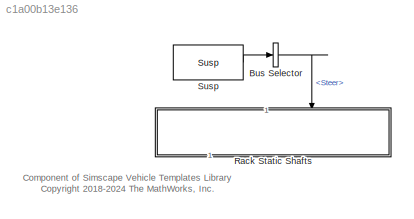
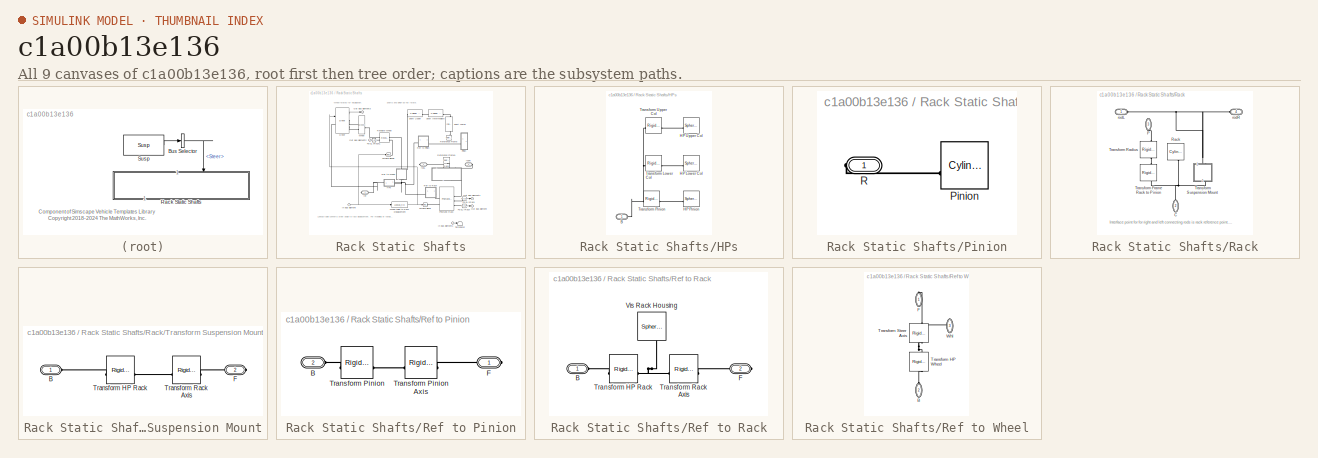
[diagram: thumbnail index - all 9 canvases of the model, root first then tree order]
MODEL slx_c1a00b13e136
KIND library
CONFIG AbsTol = auto
CONFIG EnableMultiTasking = off
CONFIG FixedStep = auto
CONFIG MaxStep = auto
CONFIG MinStep = auto
CONFIG RelTol = 1e-3
CONFIG SampleTimeConstraint = Unconstrained
CONFIG SolverName = VariableStepAuto
CONFIG StartTime = 0.0
CONFIG StopTime = 10.0
BLOCK [BusSelector] Bus Selector
  OutputSignals = Steer
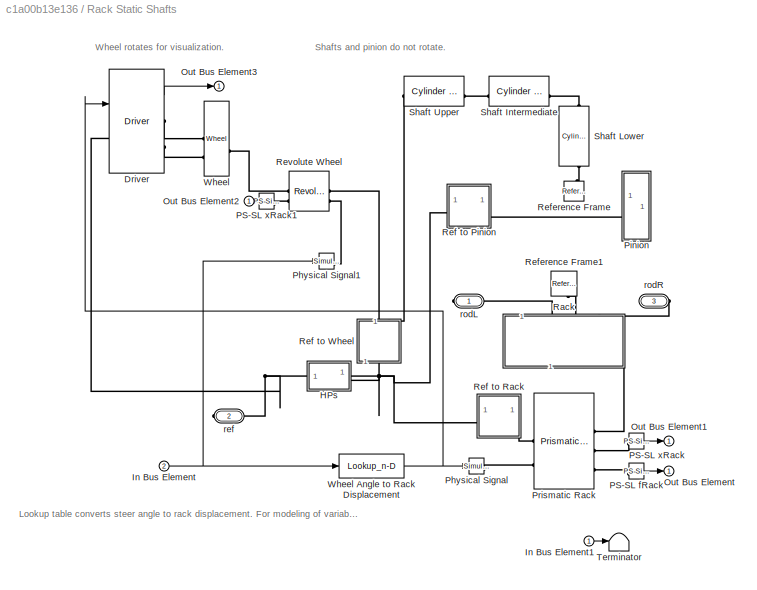
BLOCK [SubSystem] Rack Static Shafts
  NameLocation = left
  Tag = PublishSubsystem
  VariantControl = Rack
BLOCK [Reference] Rack Static Shafts/Driver  REF=Driver_Systems/Driver
  AttributesFormatString = %<LabelModeActiveChoice>
  SourceBlock = Driver_Systems/Driver
BLOCK [SubSystem] Rack Static Shafts/HPs
BLOCK [PMIOPort] Rack Static Shafts/HPs/B
  Side = Left
BLOCK [Reference] Rack Static Shafts/HPs/HP Lower Col  REF=sm_lib/Body Elements/Spherical Solid
  SourceBlock = sm_lib/Body Elements/Spherical Solid
  SourceType = Spherical Solid
BLOCK [Reference] Rack Static Shafts/HPs/HP Pinion  REF=sm_lib/Body Elements/Spherical Solid
  SourceBlock = sm_lib/Body Elements/Spherical Solid
  SourceType = Spherical Solid
BLOCK [Reference] Rack Static Shafts/HPs/HP Upper Col  REF=sm_lib/Body Elements/Spherical Solid
  SourceBlock = sm_lib/Body Elements/Spherical Solid
  SourceType = Spherical Solid
BLOCK [Reference] Rack Static Shafts/HPs/Transform Lower Col  REF=sm_lib/Frames and
Transforms/Rigid
Transform
  SourceBlock = sm_lib/Frames and\nTransforms/Rigid\nTransform
  SourceType = Rigid\nTransform
BLOCK [Reference] Rack Static Shafts/HPs/Transform Pinion  REF=sm_lib/Frames and
Transforms/Rigid
Transform
  SourceBlock = sm_lib/Frames and\nTransforms/Rigid\nTransform
  SourceType = Rigid\nTransform
BLOCK [Reference] Rack Static Shafts/HPs/Transform Upper Col  REF=sm_lib/Frames and
Transforms/Rigid
Transform
  SourceBlock = sm_lib/Frames and\nTransforms/Rigid\nTransform
  SourceType = Rigid\nTransform
BLOCK [Inport] Rack Static Shafts/In Bus Element
  Port = 2
BLOCK [Inport] Rack Static Shafts/In Bus Element1
BLOCK [Outport] Rack Static Shafts/Out Bus Element
  VectorParamsAs1DForOutWhenUnconnected = off
BLOCK [Outport] Rack Static Shafts/Out Bus Element1
  VectorParamsAs1DForOutWhenUnconnected = off
BLOCK [Outport] Rack Static Shafts/Out Bus Element2
  VectorParamsAs1DForOutWhenUnconnected = off
BLOCK [Outport] Rack Static Shafts/Out Bus Element3
  VectorParamsAs1DForOutWhenUnconnected = off
BLOCK [Reference] Rack Static Shafts/PS-SL fRack  REF=nesl_utility/PS-Simulink
Converter
  SourceBlock = nesl_utility/PS-Simulink\nConverter
  SourceType = PS-Simulink\nConverter
BLOCK [Reference] Rack Static Shafts/PS-SL xRack  REF=nesl_utility/PS-Simulink
Converter
  SourceBlock = nesl_utility/PS-Simulink\nConverter
  SourceType = PS-Simulink\nConverter
BLOCK [Reference] Rack Static Shafts/PS-SL xRack1  REF=nesl_utility/PS-Simulink
Converter
  SourceBlock = nesl_utility/PS-Simulink\nConverter
  SourceType = PS-Simulink\nConverter
BLOCK [Reference] Rack Static Shafts/Physical Signal  REF=nesl_utility/Simulink-PS
Converter
  AttributesFormatString = Filter Time Constant\n%<InputFilterTimeConstant> sec
  SourceBlock = nesl_utility/Simulink-PS\nConverter
  SourceType = Simulink-PS\nConverter
BLOCK [Reference] Rack Static Shafts/Physical Signal1  REF=nesl_utility/Simulink-PS
Converter
  AttributesFormatString = Filter Time Constant\n%<InputFilterTimeConstant> sec
  SourceBlock = nesl_utility/Simulink-PS\nConverter
  SourceType = Simulink-PS\nConverter
BLOCK [SubSystem] Rack Static Shafts/Pinion
BLOCK [Reference] Rack Static Shafts/Pinion/Pinion  REF=sm_lib/Body Elements/Cylindrical Solid
  SourceBlock = sm_lib/Body Elements/Cylindrical Solid
  SourceType = Cylindrical Solid
BLOCK [PMIOPort] Rack Static Shafts/Pinion/R
  Side = Right
BLOCK [Reference] Rack Static Shafts/Prismatic Rack  REF=sm_lib/Joints/Prismatic
Joint
  SourceBlock = sm_lib/Joints/Prismatic\nJoint
  SourceType = Prismatic\nJoint
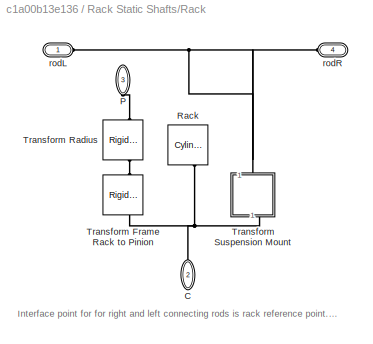
BLOCK [SubSystem] Rack Static Shafts/Rack
  NameLocation = left
BLOCK [PMIOPort] Rack Static Shafts/Rack/C
  NameLocation = left
  Port = 2
  Side = Right
BLOCK [PMIOPort] Rack Static Shafts/Rack/P
  NameLocation = left
  Port = 3
  Side = Left
BLOCK [Reference] Rack Static Shafts/Rack/Rack  REF=sm_lib/Body Elements/Cylindrical Solid
  NameLocation = right
  SourceBlock = sm_lib/Body Elements/Cylindrical Solid
  SourceType = Cylindrical Solid
BLOCK [Reference] Rack Static Shafts/Rack/Transform Frame Rack to Pinion   REF=sm_lib/Frames and
Transforms/Rigid
Transform
  NameLocation = left
  SourceBlock = sm_lib/Frames and\nTransforms/Rigid\nTransform
  SourceType = Rigid\nTransform
BLOCK [Reference] Rack Static Shafts/Rack/Transform Radius  REF=sm_lib/Frames and
Transforms/Rigid
Transform
  NameLocation = left
  SourceBlock = sm_lib/Frames and\nTransforms/Rigid\nTransform
  SourceType = Rigid\nTransform
BLOCK [SubSystem] Rack Static Shafts/Rack/Transform Suspension Mount
  NameLocation = right
BLOCK [PMIOPort] Rack Static Shafts/Rack/Transform Suspension Mount/B
  Side = Left
BLOCK [PMIOPort] Rack Static Shafts/Rack/Transform Suspension Mount/F
  Port = 2
  Side = Right
BLOCK [Reference] Rack Static Shafts/Rack/Transform Suspension Mount/Transform HP Rack  REF=sm_lib/Frames and
Transforms/Rigid
Transform
  SourceBlock = sm_lib/Frames and\nTransforms/Rigid\nTransform
  SourceType = Rigid\nTransform
BLOCK [Reference] Rack Static Shafts/Rack/Transform Suspension Mount/Transform Rack Axis  REF=sm_lib/Frames and
Transforms/Rigid
Transform
  SourceBlock = sm_lib/Frames and\nTransforms/Rigid\nTransform
  SourceType = Rigid\nTransform
BLOCK [PMIOPort] Rack Static Shafts/Rack/rodL
  Side = Left
BLOCK [PMIOPort] Rack Static Shafts/Rack/rodR
  Port = 4
  Side = Left
BLOCK [SubSystem] Rack Static Shafts/Ref to Pinion
BLOCK [PMIOPort] Rack Static Shafts/Ref to Pinion/B
  Port = 2
  Side = Left
BLOCK [PMIOPort] Rack Static Shafts/Ref to Pinion/F
  Side = Right
BLOCK [Reference] Rack Static Shafts/Ref to Pinion/Transform Pinion  REF=sm_lib/Frames and
Transforms/Rigid
Transform
  SourceBlock = sm_lib/Frames and\nTransforms/Rigid\nTransform
  SourceType = Rigid\nTransform
BLOCK [Reference] Rack Static Shafts/Ref to Pinion/Transform Pinion Axis  REF=sm_lib/Frames and
Transforms/Rigid
Transform
  SourceBlock = sm_lib/Frames and\nTransforms/Rigid\nTransform
  SourceType = Rigid\nTransform
BLOCK [SubSystem] Rack Static Shafts/Ref to Rack
BLOCK [PMIOPort] Rack Static Shafts/Ref to Rack/B
  Side = Left
BLOCK [PMIOPort] Rack Static Shafts/Ref to Rack/F
  Port = 2
  Side = Right
BLOCK [Reference] Rack Static Shafts/Ref to Rack/Transform HP Rack  REF=sm_lib/Frames and
Transforms/Rigid
Transform
  SourceBlock = sm_lib/Frames and\nTransforms/Rigid\nTransform
  SourceType = Rigid\nTransform
BLOCK [Reference] Rack Static Shafts/Ref to Rack/Transform Rack Axis  REF=sm_lib/Frames and
Transforms/Rigid
Transform
  SourceBlock = sm_lib/Frames and\nTransforms/Rigid\nTransform
  SourceType = Rigid\nTransform
BLOCK [Reference] Rack Static Shafts/Ref to Rack/Vis Rack Housing  REF=sm_lib/Body Elements/Spherical Solid
  NameLocation = left
  SourceBlock = sm_lib/Body Elements/Spherical Solid
  SourceType = Spherical Solid
BLOCK [SubSystem] Rack Static Shafts/Ref to Wheel
  NameLocation = left
BLOCK [PMIOPort] Rack Static Shafts/Ref to Wheel/B
  NameLocation = right
  Port = 2
  Side = Left
BLOCK [PMIOPort] Rack Static Shafts/Ref to Wheel/F
  NameLocation = left
  Side = Right
BLOCK [Reference] Rack Static Shafts/Ref to Wheel/Transform HP Wheel  REF=sm_lib/Frames and
Transforms/Rigid
Transform
  NameLocation = left
  SourceBlock = sm_lib/Frames and\nTransforms/Rigid\nTransform
  SourceType = Rigid\nTransform
BLOCK [Reference] Rack Static Shafts/Ref to Wheel/Transform Steer Axis  REF=sm_lib/Frames and
Transforms/Rigid
Transform
  NameLocation = left
  SourceBlock = sm_lib/Frames and\nTransforms/Rigid\nTransform
  SourceType = Rigid\nTransform
BLOCK [PMIOPort] Rack Static Shafts/Ref to Wheel/Whl
  NameLocation = left
  Port = 3
  Side = Right
BLOCK [Reference] Rack Static Shafts/Reference Frame  REF=sm_lib/Frames and
Transforms/Reference
Frame
  NameLocation = right
  SourceBlock = sm_lib/Frames and\nTransforms/Reference\nFrame
  SourceType = Reference\nFrame
BLOCK [Reference] Rack Static Shafts/Reference Frame1  REF=sm_lib/Frames and
Transforms/Reference
Frame
  NameLocation = left
  SourceBlock = sm_lib/Frames and\nTransforms/Reference\nFrame
  SourceType = Reference\nFrame
BLOCK [Reference] Rack Static Shafts/Revolute Wheel  REF=sm_lib/Joints/Revolute Joint
  SourceBlock = sm_lib/Joints/Revolute Joint
  SourceType = Revolute Joint
BLOCK [Reference] Rack Static Shafts/Shaft Intermediate  REF=Suspension_Utilities/Cylinder Between
Two Points
  SourceBlock = Suspension_Utilities/Cylinder Between\nTwo Points
  SourceType = Cylinder between two points
BLOCK [Reference] Rack Static Shafts/Shaft Lower  REF=Suspension_Utilities/Cylinder Between
Two Points
  NameLocation = right
  SourceBlock = Suspension_Utilities/Cylinder Between\nTwo Points
  SourceType = Cylinder between two points
BLOCK [Reference] Rack Static Shafts/Shaft Upper  REF=Suspension_Utilities/Cylinder Between
Two Points
  SourceBlock = Suspension_Utilities/Cylinder Between\nTwo Points
  SourceType = Cylinder between two points
BLOCK [Terminator] Rack Static Shafts/Terminator
BLOCK [Reference] Rack Static Shafts/Wheel  REF=SteeringWheel/Wheel
  SourceBlock = SteeringWheel/Wheel
BLOCK [Lookup_n-D] Rack Static Shafts/Wheel Angle to Rack Displacement
  BreakpointsForDimension1 = whl2rack_whlangle
  InputPortMap = u0
  InternalRulePriority = Speed
  NameLocation = top
  NumberOfTableDimensions = 1
  RndMeth = Simplest
  Table = whl2rack_rackdisp
BLOCK [PMIOPort] Rack Static Shafts/ref
  Port = 2
  Side = Right
BLOCK [PMIOPort] Rack Static Shafts/rodL
  Side = Right
BLOCK [PMIOPort] Rack Static Shafts/rodR
  Port = 3
  Side = Right
BLOCK [Reference] Susp  REF=Vehicle_Inputs/Control Bus/Susp
  SourceBlock = Vehicle_Inputs/Control Bus/Susp
ANNOTATION (root): Component of Simscape Vehicle Templates Library <copyright redacted>
ANNOTATION Rack Static Shafts: Lookup table converts steer angle to rack displacement. For modeling of variable gear ratios.
ANNOTATION Rack Static Shafts: Shafts and pinion do not rotate.
ANNOTATION Rack Static Shafts: Wheel rotates for visualization.
ANNOTATION Rack Static Shafts/Rack: Interface point for for right and left connecting rods is rack reference point. This permits the rack subsystem to mate with the connecting rods without knowing where they are, as both systems (rack and linkages) know where the front axle reference point is.
LINE Bus Selector:1 -> Rack Static Shafts:2
LINE Susp:1 -> Bus Selector:1
